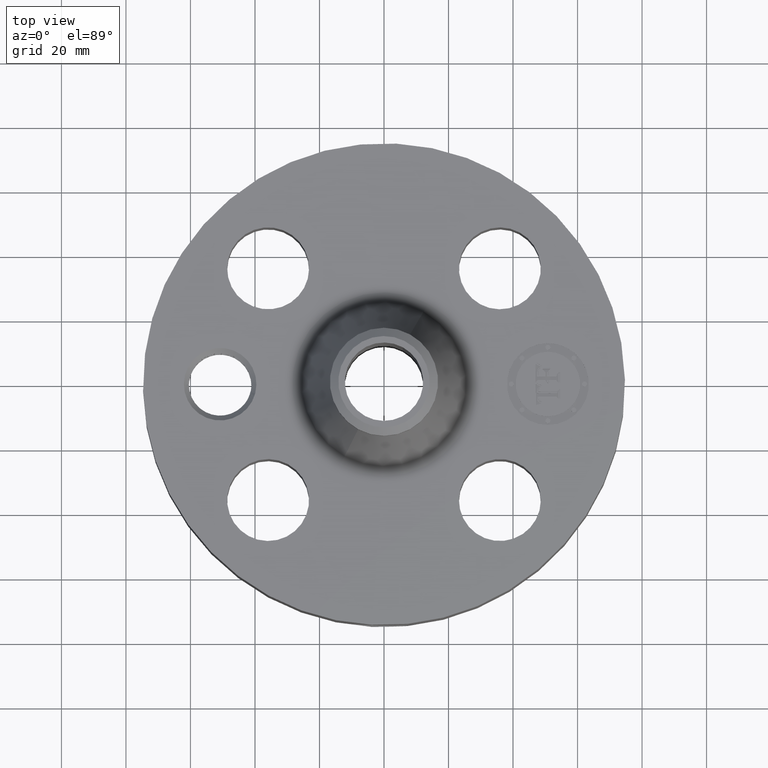
[diagram: clean part render]
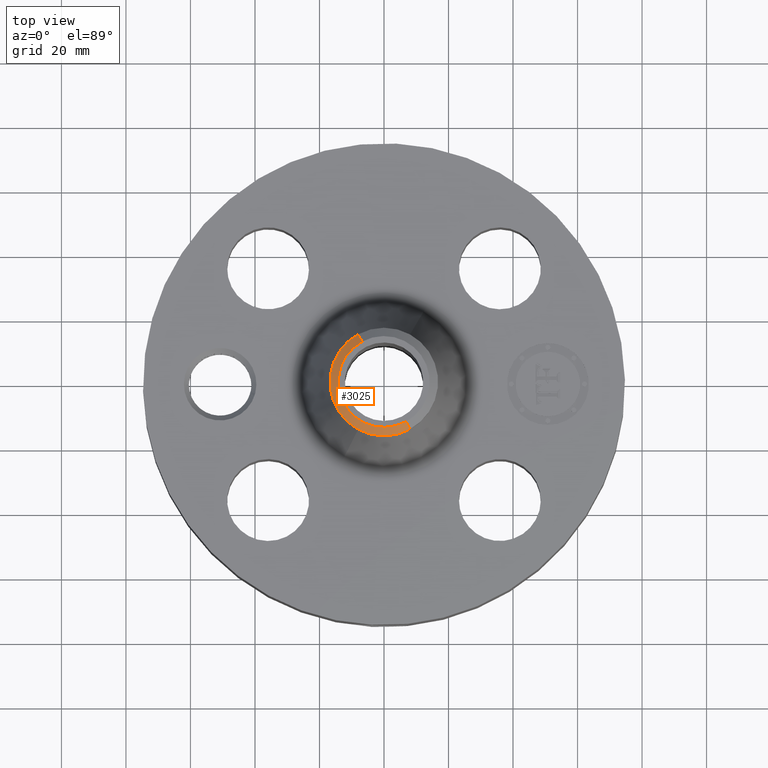
[diagram: same view with one face highlighted and labeled with its STEP entity id]
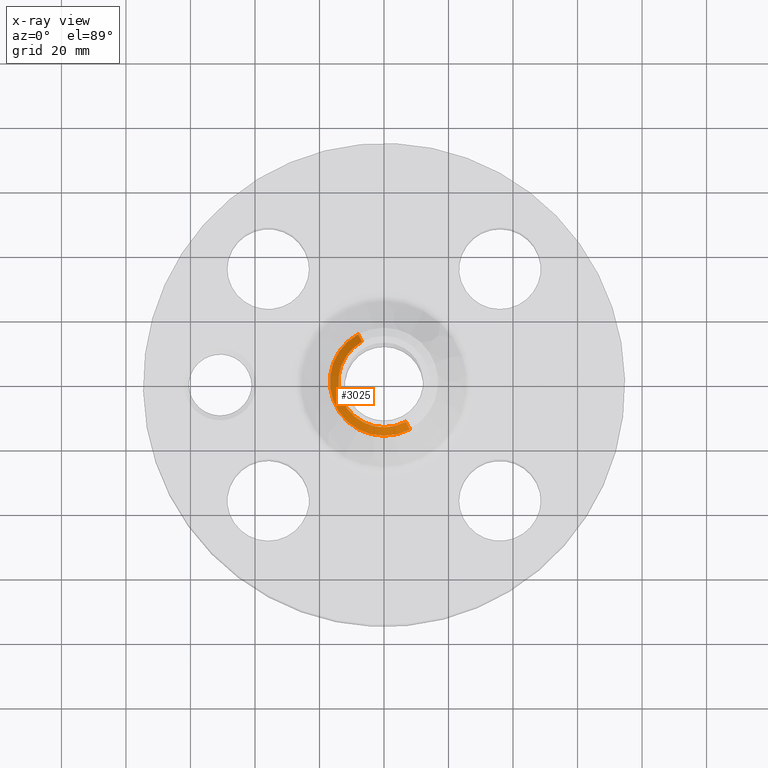
[diagram: x-ray of the same camera — body ghosted, the highlighted face saturated]
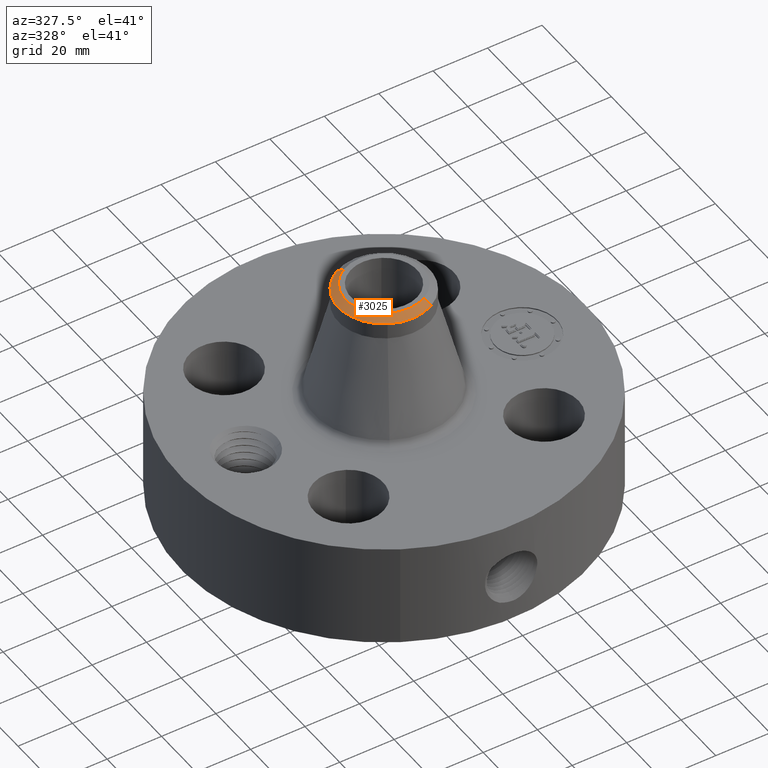
[diagram: same view with one face highlighted and labeled with its STEP entity id]
A machine part, top view. The second image highlights one B-rep face of the part: STEP entity #3025.
The next image is the same camera in x-ray: the body ghosted, the highlighted face saturated — about 0% of this face is hidden behind the body in this view.
A second angle (auxiliary view) of the same face is appended — the face is thin or edge-on in the first view.
In plain terms, the highlighted conical surface has half-angle 52.5 deg.
Its self-contained STEP definition (entity closure, byte-faithful):
#2212=AXIS2_PLACEMENT_3D('Circle Axis2P3D',#2210,#2211,$) ;
#2990=AXIS2_PLACEMENT_3D('Cone Axis2P3D',#2987,#2988,#2989) ;
#3008=AXIS2_PLACEMENT_3D('Circle Axis2P3D',#3006,#3007,$) ;
#3015=AXIS2_PLACEMENT_3D('Circle Axis2P3D',#3013,#3014,$) ;
#2205=CARTESIAN_POINT('Vertex',(0.267155162633,-0.489024244991,3.50000000001)) ;
#2207=CARTESIAN_POINT('Vertex',(-0.267155162633,0.489024244991,3.50000000001)) ;
#2210=CARTESIAN_POINT('Axis2P3D Location',(0.,0.,3.50000000001)) ;
#2987=CARTESIAN_POINT('Axis2P3D Location',(0.,0.,3.50000000001)) ;
#2992=CARTESIAN_POINT('Line Origine',(0.291788009056,-0.534114367921,3.46057479979)) ;
#2996=CARTESIAN_POINT('Vertex',(0.31642085548,-0.57920449085,3.42114959957)) ;
#2999=CARTESIAN_POINT('Line Origine',(-0.291788009056,0.534114367921,3.46057479979)) ;
#3003=CARTESIAN_POINT('Vertex',(-0.31642085548,0.57920449085,3.42114959957)) ;
#3006=CARTESIAN_POINT('Axis2P3D Location',(0.,0.,3.42114959957)) ;
#3010=CARTESIAN_POINT('Vertex',(-0.31642085548,-0.57920449085,3.42114959957)) ;
#3013=CARTESIAN_POINT('Axis2P3D Location',(0.,0.,3.42114959957)) ;
#2211=DIRECTION('Axis2P3D Direction',(0.,0.,-0.0393700787402)) ;
#2988=DIRECTION('Axis2P3D Direction',(-0.,-0.,-0.0393700787402)) ;
#2989=DIRECTION('Axis2P3D XDirection',(-0.0188750212049,0.0345504945626,0.)) ;
#2993=DIRECTION('Vector Direction',(0.014974561121,-0.02741075027,-0.023966985394)) ;
#3000=DIRECTION('Vector Direction',(-0.014974561121,0.02741075027,-0.023966985394)) ;
#3007=DIRECTION('Axis2P3D Direction',(0.,0.,-0.0393700787402)) ;
#3014=DIRECTION('Axis2P3D Direction',(0.,0.,-0.0393700787402)) ;
#2994=VECTOR('Line Direction',#2993,0.0393700787402) ;
#3001=VECTOR('Line Direction',#3000,0.0393700787402) ;
#3019=ORIENTED_EDGE('',*,*,#2998,.F.) ;
#3020=ORIENTED_EDGE('',*,*,#2214,.F.) ;
#3021=ORIENTED_EDGE('',*,*,#3005,.T.) ;
#3022=ORIENTED_EDGE('',*,*,#3012,.T.) ;
#3023=ORIENTED_EDGE('',*,*,#3017,.F.) ;
#3025=ADVANCED_FACE('PartBody',(#3024),#2991,.T.) ;
#2213=CIRCLE('generated circle',#2212,0.557240157482) ;
#3009=CIRCLE('generated circle',#3008,0.660000000003) ;
#3016=CIRCLE('generated circle',#3015,0.660000000003) ;
#2991=CONICAL_SURFACE('Cone',#2990,0.557240157482,0.916297857297) ;
#2214=EDGE_CURVE('',#2208,#2206,#2213,.F.) ;
#2998=EDGE_CURVE('',#2206,#2997,#2995,.T.) ;
#3005=EDGE_CURVE('',#2208,#3004,#3002,.T.) ;
#3012=EDGE_CURVE('',#3004,#3011,#3009,.F.) ;
#3017=EDGE_CURVE('',#2997,#3011,#3016,.T.) ;
#3018=EDGE_LOOP('',(#3019,#3020,#3021,#3022,#3023)) ;
#3024=FACE_OUTER_BOUND('',#3018,.T.) ;
#2995=LINE('Line',#2992,#2994) ;
#3002=LINE('Line',#2999,#3001) ;
#2206=VERTEX_POINT('',#2205) ;
#2208=VERTEX_POINT('',#2207) ;
#2997=VERTEX_POINT('',#2996) ;
#3004=VERTEX_POINT('',#3003) ;
#3011=VERTEX_POINT('',#3010) ;